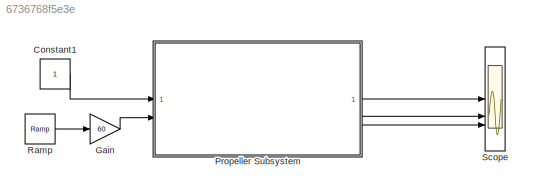
MODEL slx_6736768f5e3e
KIND model
CONFIG AbsTol = auto
CONFIG EnableMultiTasking = off
CONFIG FixedStep = auto
CONFIG MaxStep = auto
CONFIG MinStep = auto
CONFIG RelTol = 1e-3
CONFIG SampleTimeConstraint = Unconstrained
CONFIG SolverName = VariableStepAuto
CONFIG StartTime = 0.0
CONFIG StopTime = 10.0
BLOCK [Constant] Constant1
BLOCK [Gain] Gain
  Gain = 60
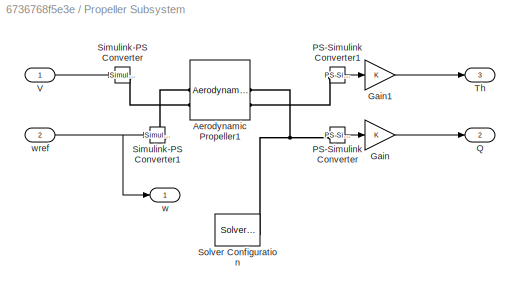
BLOCK [SubSystem] Propeller Subsystem
BLOCK [Reference] Propeller Subsystem/Aerodynamic Propeller1  REF=sdl_lib/Engines & Motors/Aerodynamic
Propeller
  NameLocation = top
  SourceBlock = sdl_lib/Engines & Motors/Aerodynamic\nPropeller
  SourceType = Aerodynamic\nPropeller
BLOCK [Gain] Propeller Subsystem/Gain
BLOCK [Gain] Propeller Subsystem/Gain1
BLOCK [Reference] Propeller Subsystem/PS-Simulink Converter  REF=nesl_utility/PS-Simulink
Converter
  SourceBlock = nesl_utility/PS-Simulink\nConverter
  SourceType = PS-Simulink\nConverter
BLOCK [Reference] Propeller Subsystem/PS-Simulink Converter1  REF=nesl_utility/PS-Simulink
Converter
  SourceBlock = nesl_utility/PS-Simulink\nConverter
  SourceType = PS-Simulink\nConverter
BLOCK [Outport] Propeller Subsystem/Q
  Port = 2
BLOCK [Reference] Propeller Subsystem/Simulink-PS Converter  REF=nesl_utility/Simulink-PS
Converter
  SourceBlock = nesl_utility/Simulink-PS\nConverter
  SourceType = Simulink-PS\nConverter
BLOCK [Reference] Propeller Subsystem/Simulink-PS Converter1  REF=nesl_utility/Simulink-PS
Converter
  SourceBlock = nesl_utility/Simulink-PS\nConverter
  SourceType = Simulink-PS\nConverter
BLOCK [Reference] Propeller Subsystem/Solver Configuration  REF=nesl_utility/Solver
Configuration
  SourceBlock = nesl_utility/Solver\nConfiguration
  SourceType = Solver\nConfiguration
BLOCK [Outport] Propeller Subsystem/Th
  Port = 3
BLOCK [Inport] Propeller Subsystem/V
BLOCK [Outport] Propeller Subsystem/w
BLOCK [Inport] Propeller Subsystem/wref
  Port = 2
BLOCK [Reference] Ramp  REF=simulink/Sources/Ramp
  SourceBlock = simulink/Sources/Ramp
  SourceType = Ramp
BLOCK [Scope] Scope
  Floating = off
  NumInputPorts = 3
  ScopeSpecificationString = Simulink.scopes.TimeScopeBlockCfg('CurrentConfiguration', extmgr.ConfigurationSet(extmgr.Configuration('Core','General UI',true),extmgr.Configuration('Core','Source UI',true),extmgr.Configuration('Sources','WiredSimulink',true),extmgr.Configuration('Visuals','Time Domain',true,'SerializedDisplays',{struct('MinYLimReal','-1125.00000','MaxYLimReal','10125.00000','YLabelReal','','MinYLimMag','  0.000...<+2796ch>
LINE Constant1:1 -> Propeller Subsystem:1
LINE Gain:1 -> Propeller Subsystem:2
LINE Propeller Subsystem/Gain1:1 -> Propeller Subsystem/Th:1
LINE Propeller Subsystem/Gain:1 -> Propeller Subsystem/Q:1
LINE Propeller Subsystem/PS-Simulink Converter1:1 -> Propeller Subsystem/Gain1:1
LINE Propeller Subsystem/PS-Simulink Converter:1 -> Propeller Subsystem/Gain:1
LINE Propeller Subsystem/V:1 -> Propeller Subsystem/Simulink-PS Converter:1
NET Propeller Subsystem/wref:1 -> Propeller Subsystem/Simulink-PS Converter1:1, Propeller Subsystem/w:1
LINE Propeller Subsystem:1 -> Scope:1
LINE Propeller Subsystem:2 -> Scope:2
LINE Propeller Subsystem:3 -> Scope:3
LINE Ramp:1 -> Gain:1
PNET net1: Propeller Subsystem/Aerodynamic Propeller1:LConn1 -- Propeller Subsystem/PS-Simulink Converter:LConn1 -- Propeller Subsystem/Solver Configuration:RConn1
PLINE Propeller Subsystem/Aerodynamic Propeller1:LConn2 -- Propeller Subsystem/PS-Simulink Converter1:LConn1
PLINE Propeller Subsystem/Aerodynamic Propeller1:RConn1 -- Propeller Subsystem/Simulink-PS Converter1:RConn1
PLINE Propeller Subsystem/Aerodynamic Propeller1:RConn2 -- Propeller Subsystem/Simulink-PS Converter:RConn1
note: NET lines group one-source signal fan-out (src -> all destinations, sorted); 1:1 wires keep LINE; PNET lines group multi-terminal physical nets as a canonical sorted terminal list (undirected conserving connections); 2-terminal nets keep the pairwise PLINE form
